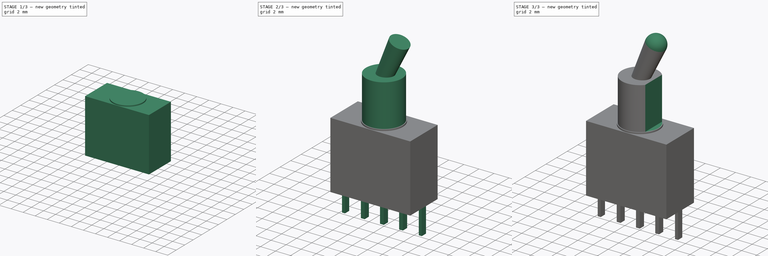
[diagram: build sequence overview — one tinted view per stage of 3, left to right]
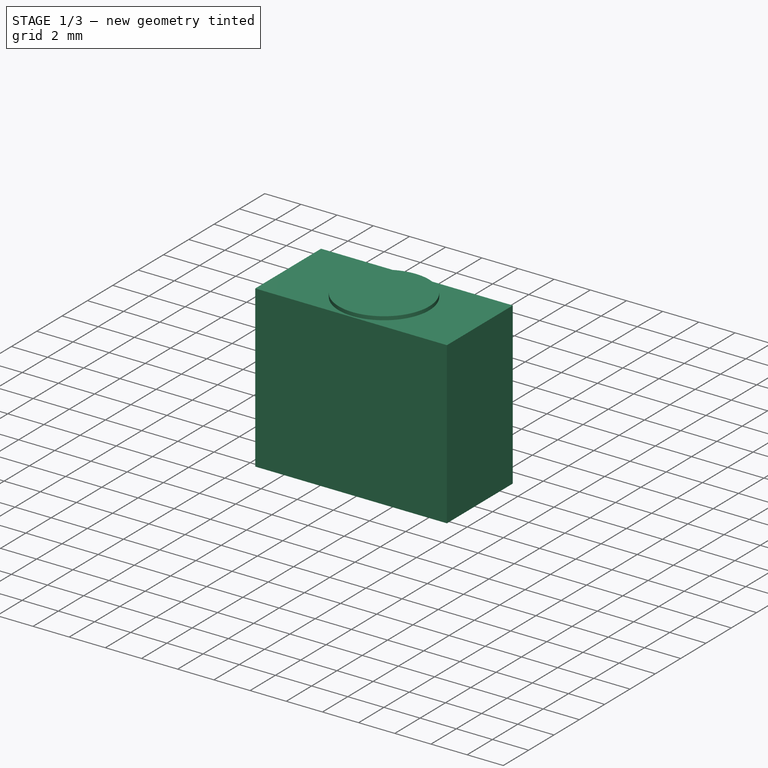
[diagram: stage 1 of 3 — iso view after this stage's code; geometry added in this stage tinted green]
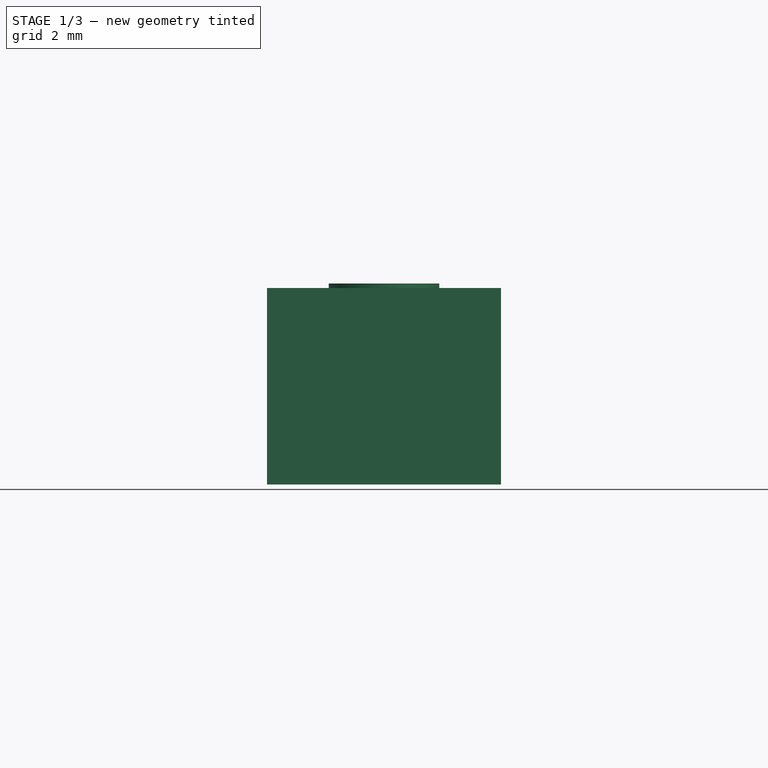
[diagram: stage 1 of 3 — front view after this stage's code; geometry added in this stage tinted green]
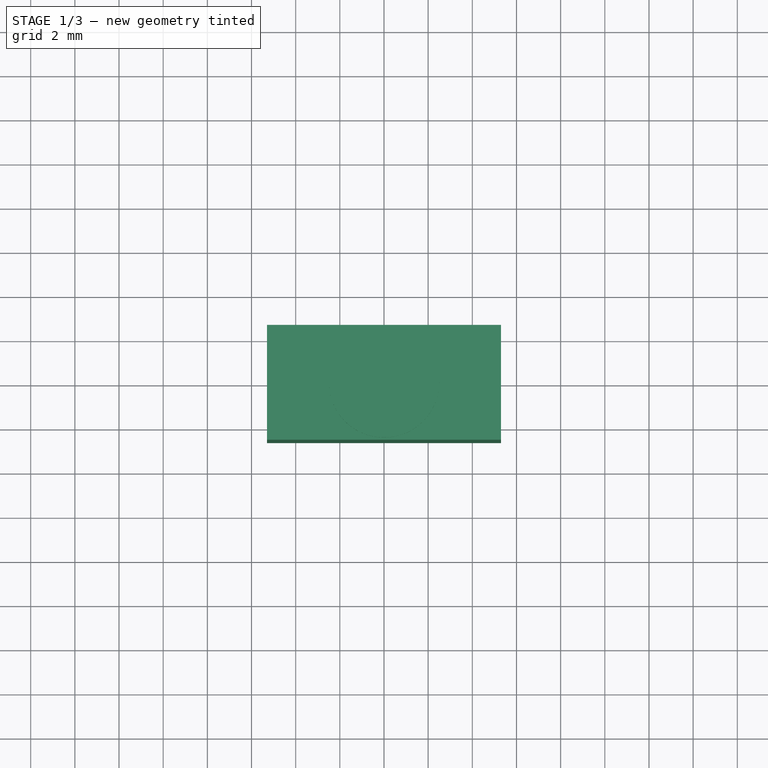
[diagram: stage 1 of 3 — top view after this stage's code; geometry added in this stage tinted green]
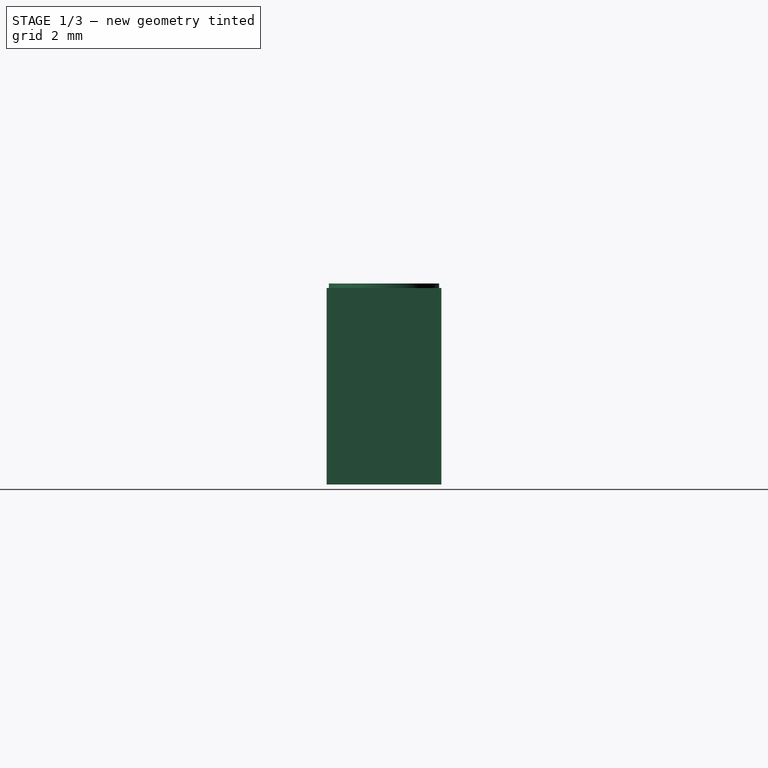
[diagram: stage 1 of 3 — right view after this stage's code; geometry added in this stage tinted green]
FCSTD DOCUMENT  (FreeCAD 0.19R24276 (Git))
Label: switch-smts-102-2c2t
License: All rights reserved
LicenseURL: http://en.wikipedia.org/wiki/All_rights_reserved
objects: Sketcher::SketchObject×5, PartDesign::Pad×4, PartDesign::AdditiveCone×1, PartDesign::AdditiveSphere×1, PartDesign::Pocket×1, PartDesign::Body×1
note: 20 computed .brp shape members not serialized (recipe doc carries the construction recipe); baked Part::Feature solids carry a one-line shape summary decoded from their .brp

FEATURE [Sketcher::SketchObject] Sketch  label="base"
  FullyConstrained = true
  MapMode = 5
  Support = -> [XY_Plane]
  sketch-geometry (4):
    g0: LineSegment StartX=-5.3 StartY=2.6 StartZ=0 EndX=5.3 EndY=2.6 EndZ=0
    g1: LineSegment StartX=5.3 StartY=2.6 StartZ=0 EndX=5.3 EndY=-2.6 EndZ=0
    g2: LineSegment StartX=5.3 StartY=-2.6 StartZ=0 EndX=-5.3 EndY=-2.6 EndZ=0
    g3: LineSegment StartX=-5.3 StartY=-2.6 StartZ=0 EndX=-5.3 EndY=2.6 EndZ=0
  constraints (12):
    c: Coincident(g0,g1)
    c: Coincident(g1,g2)
    c: Coincident(g2,g3)
    c: Coincident(g3,g0)
    c: Horizontal(g0)
    c: Horizontal(g2)
    c: Vertical(g1)
    c: Vertical(g3)
    c: DistanceY(g2,g-1) = 2.6
    c: DistanceY(g-1,g0) = 2.6
    c: DistanceX(g-1,g0) = 5.3
    c: DistanceX(g0,g-1) = 5.3
FEATURE [PartDesign::Pad] Pad  label="base_pad"
  Direction = (1,1,1)
  Length = 8.9
  Length2 = 100
  Profile = -> Sketch
  Type = 0
FEATURE [Sketcher::SketchObject] Sketch001  label="circle_d5mm"
  FullyConstrained = true
  MapMode = 5
  Placement = pos=(0,0,8.9) rot=(0,0,1;0rad)
  Support = -> [Pad]
  sketch-geometry (1):
    g0: Circle CenterX=0 CenterY=0 CenterZ=0 NormalX=0 NormalY=0 NormalZ=1 AngleXU=0 Radius=2.5
  constraints (2):
    c: Coincident(g0,g-1)
    c: Radius(g0) = 2.5
FEATURE [PartDesign::Pad] Pad001  label="circle_d5mm_pad"
  BaseFeature = -> Pad
  Direction = (1,1,1)
  Length = 0.2
  Length2 = 100
  Profile = -> Sketch001
  Type = 0
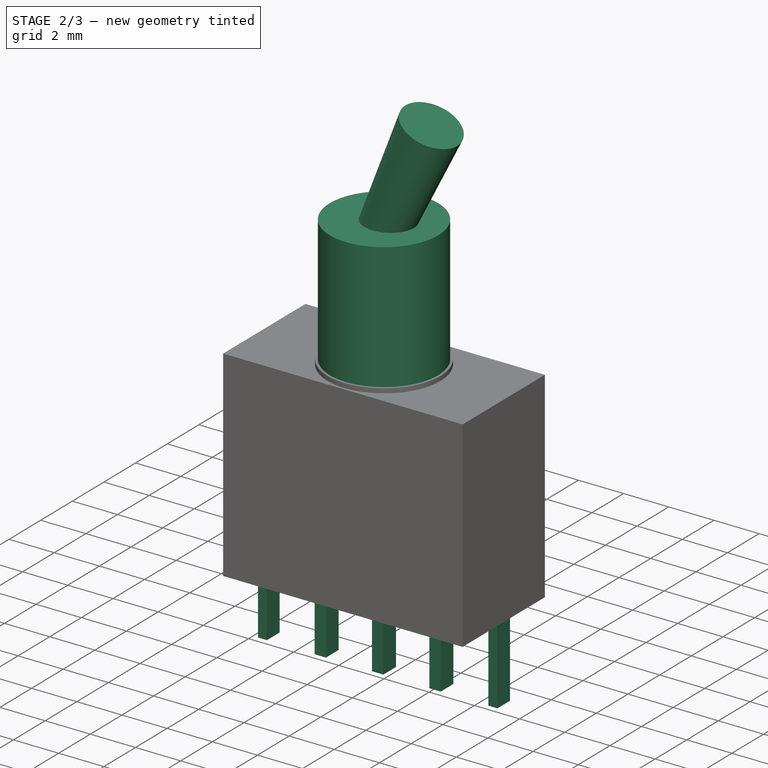
[diagram: stage 2 of 3 — iso view after this stage's code; geometry added in this stage tinted green]
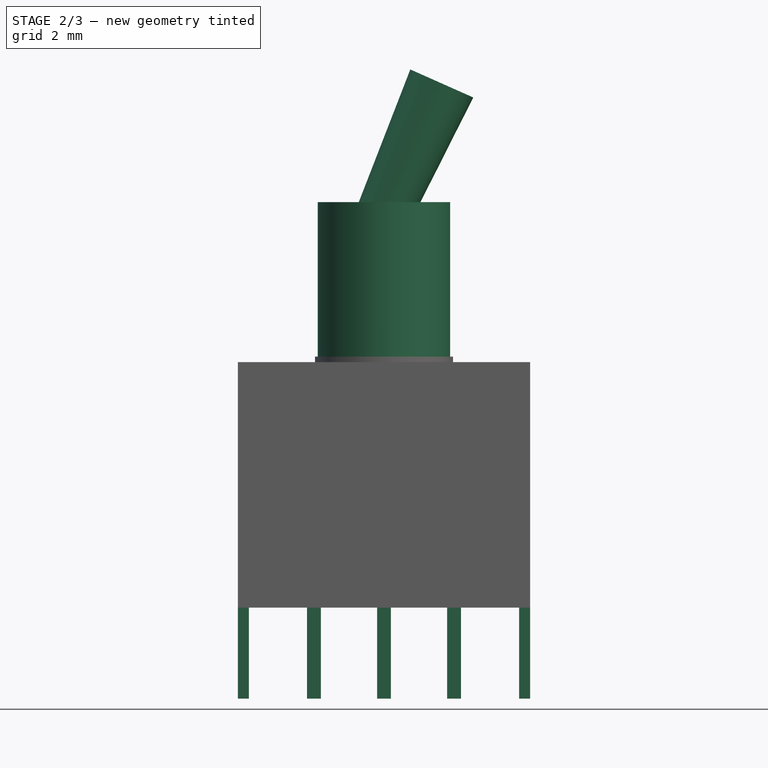
[diagram: stage 2 of 3 — front view after this stage's code; geometry added in this stage tinted green]
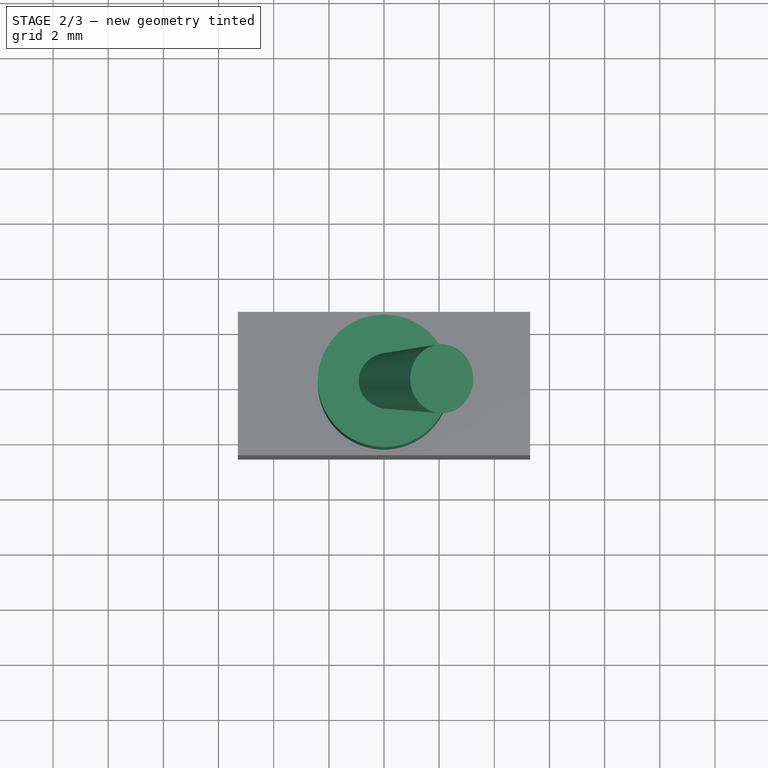
[diagram: stage 2 of 3 — top view after this stage's code; geometry added in this stage tinted green]
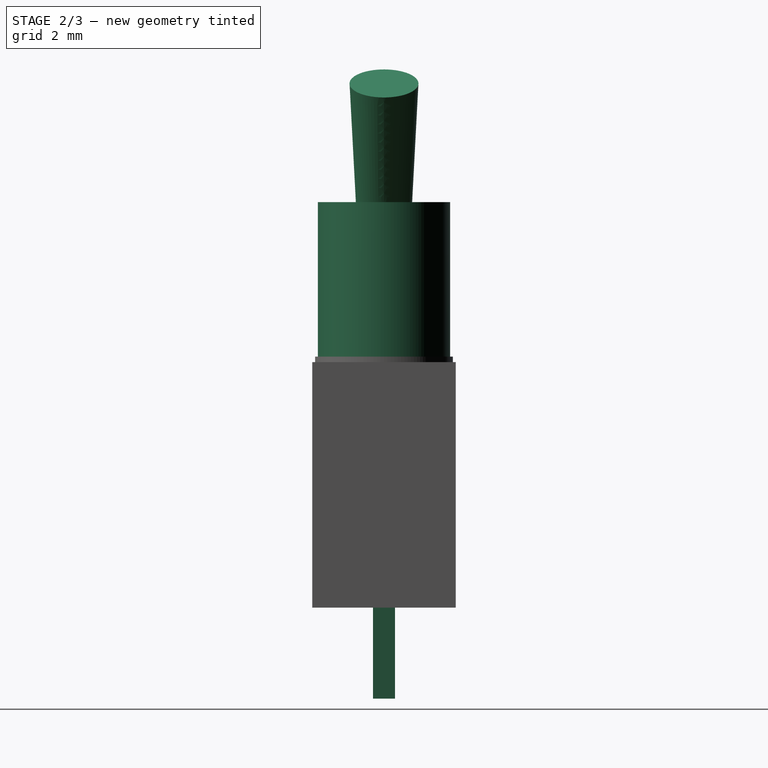
[diagram: stage 2 of 3 — right view after this stage's code; geometry added in this stage tinted green]
FEATURE [Sketcher::SketchObject] Sketch002  label="circle_d4.8mm"
  FullyConstrained = true
  MapMode = 5
  Placement = pos=(0,0,9.1) rot=(0,0,1;0rad)
  Support = -> [Pad001]
  sketch-geometry (1):
    g0: Circle CenterX=0 CenterY=0 CenterZ=0 NormalX=0 NormalY=0 NormalZ=1 AngleXU=0 Radius=2.4
  constraints (2):
    c: Coincident(g0,g-1)
    c: Radius(g0) = 2.4
FEATURE [PartDesign::Pad] Pad002  label="circle_d4.8mm_pad"
  BaseFeature = -> Pad001
  Direction = (1,1,1)
  Length = 5.6
  Length2 = 100
  Profile = -> Sketch002
  Type = 0
FEATURE [Sketcher::SketchObject] Sketch003  label="pins"
  FullyConstrained = true
  MapMode = 5
  Placement = pos=(0,0,0) rot=(1,0,0;3.14159rad)
  Support = -> [Pad002]
  sketch-geometry (20):
    g0: LineSegment StartX=-0.25 StartY=0.4 StartZ=0 EndX=0.25 EndY=0.4 EndZ=0
    g1: LineSegment StartX=0.25 StartY=0.4 StartZ=0 EndX=0.25 EndY=-0.4 EndZ=0
    g2: LineSegment StartX=0.25 StartY=-0.4 StartZ=0 EndX=-0.25 EndY=-0.4 EndZ=0
    g3: LineSegment StartX=-0.25 StartY=-0.4 StartZ=0 EndX=-0.25 EndY=0.4 EndZ=0
    g4: LineSegment StartX=-2.79 StartY=0.4 StartZ=0 EndX=-2.29 EndY=0.4 EndZ=0
    g5: LineSegment StartX=-2.29 StartY=0.4 StartZ=0 EndX=-2.29 EndY=-0.4 EndZ=0
    g6: LineSegment StartX=-2.29 StartY=-0.4 StartZ=0 EndX=-2.79 EndY=-0.4 EndZ=0
    g7: LineSegment StartX=-2.79 StartY=-0.4 StartZ=0 EndX=-2.79 EndY=0.4 EndZ=0
    g8: LineSegment StartX=2.29 StartY=0.4 StartZ=0 EndX=2.79 EndY=0.4 EndZ=0
    g9: LineSegment StartX=2.79 StartY=0.4 StartZ=0 EndX=2.79 EndY=-0.4 EndZ=0
    g10: LineSegment StartX=2.79 StartY=-0.4 StartZ=0 EndX=2.29 EndY=-0.4 EndZ=0
    g11: LineSegment StartX=2.29 StartY=-0.4 StartZ=0 EndX=2.29 EndY=0.4 EndZ=0
    g12: LineSegment StartX=-5.3 StartY=0.4 StartZ=0 EndX=-4.9 EndY=0.4 EndZ=0
    g13: LineSegment StartX=-4.9 StartY=0.4 StartZ=0 EndX=-4.9 EndY=-0.4 EndZ=0
    g14: LineSegment StartX=-4.9 StartY=-0.4 StartZ=0 EndX=-5.3 EndY=-0.4 EndZ=0
    g15: LineSegment StartX=-5.3 StartY=-0.4 StartZ=0 EndX=-5.3 EndY=0.4 EndZ=0
    g16: LineSegment StartX=4.9 StartY=0.4 StartZ=0 EndX=5.3 EndY=0.4 EndZ=0
    g17: LineSegment StartX=5.3 StartY=0.4 StartZ=0 EndX=5.3 EndY=-0.4 EndZ=0
    g18: LineSegment StartX=5.3 StartY=-0.4 StartZ=0 EndX=4.9 EndY=-0.4 EndZ=0
    g19: LineSegment StartX=4.9 StartY=-0.4 StartZ=0 EndX=4.9 EndY=0.4 EndZ=0
  constraints (60):
    c: Coincident(g0,g1)
    c: Coincident(g1,g2)
    c: Coincident(g2,g3)
    c: Coincident(g3,g0)
    c: Horizontal(g0)
    c: Horizontal(g2)
    c: Vertical(g1)
    c: Vertical(g3)
    c: DistanceX(g2,g-1) = 0.25
    c: DistanceX(g-1,g1) = 0.25
    c: DistanceY(g-1,g0) = 0.4
    c: DistanceY(g2,g-1) = 0.4
    c: Coincident(g4,g5)
    c: Coincident(g5,g6)
    c: Coincident(g6,g7)
    c: Coincident(g7,g4)
    c: Horizontal(g4)
    c: Horizontal(g6)
    c: Vertical(g5)
    c: Vertical(g7)
    c: DistanceX(g4,g4) = 0.5
    c: DistanceY(g7,g7) = 0.8
    c: DistanceY(g-1,g4) = 0.4
    c: DistanceX(g5,g2) = 2.04
    c: Coincident(g8,g9)
    c: Coincident(g9,g10)
    c: Coincident(g10,g11)
    c: Coincident(g11,g8)
    c: Horizontal(g8)
    c: Horizontal(g10)
    c: Vertical(g9)
    c: Vertical(g11)
    c: Equal(g4,g8) = 0.5
    c: Equal(g7,g11) = 0.8
    c: PointOnObject(g11,g6)
    c: DistanceX(g1,g10) = 2.04
    c: Coincident(g12,g13)
    c: Coincident(g13,g14)
    c: Coincident(g14,g15)
    c: Coincident(g15,g12)
    c: Horizontal(g12)
    c: Horizontal(g14)
    c: Vertical(g13)
    c: Vertical(g15)
    c: DistanceX(g12,g12) = 0.4
    c: DistanceY(g15,g15) = 0.8
    c: DistanceX(g13,g-1) = 4.9
    c: DistanceY(g-1,g12) = 0.4
    c: Coincident(g16,g17)
    c: Coincident(g17,g18)
    c: Coincident(g18,g19)
    c: Coincident(g19,g16)
    c: Horizontal(g16)
    c: Horizontal(g18)
    c: Vertical(g17)
    c: Vertical(g19)
    c: Equal(g12,g16) = 0.4
    c: Equal(g15,g19) = 0.8
    c: DistanceX(g-1,g16) = 4.9
    c: DistanceY(g-1,g16) = 0.4
FEATURE [PartDesign::Pad] Pad003  label="pins_pad"
  BaseFeature = -> Pad002
  Direction = (1,1,1)
  Length = 3.3
  Length2 = 100
  Profile = -> Sketch003
  Type = 0
FEATURE [PartDesign::AdditiveCone] Cone  label="lever"
  Angle = 360
  AttacherType = Attacher::AttachEngine3D
  AttachmentOffset = pos=(0,0,-0.4) rot=(0,1,0;0.418879rad)
  BaseFeature = -> Pad003
  Height = 5.15
  MapMode = 5
  Placement = pos=(0,0,14.3) rot=(0,1,0;0.418879rad)
  Radius1 = 1
  Radius2 = 1.25
  Support = -> [Pad003]
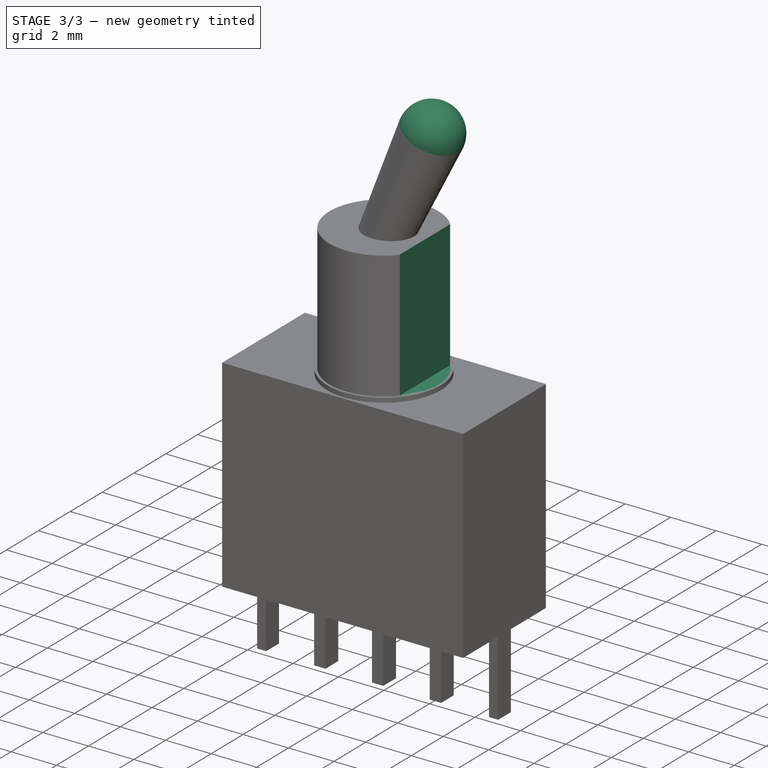
[diagram: stage 3 of 3 — iso view after this stage's code; geometry added in this stage tinted green]
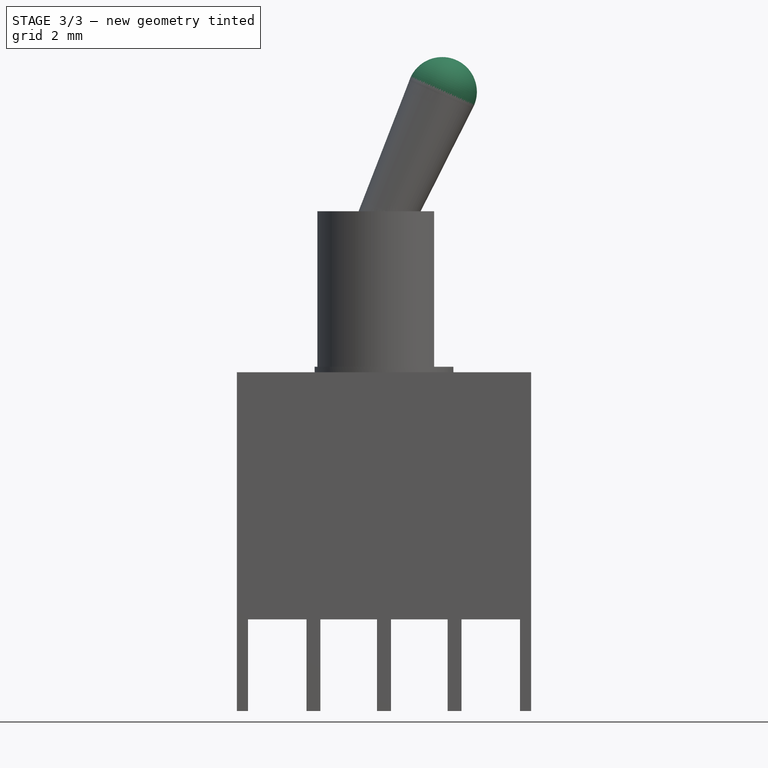
[diagram: stage 3 of 3 — front view after this stage's code; geometry added in this stage tinted green]
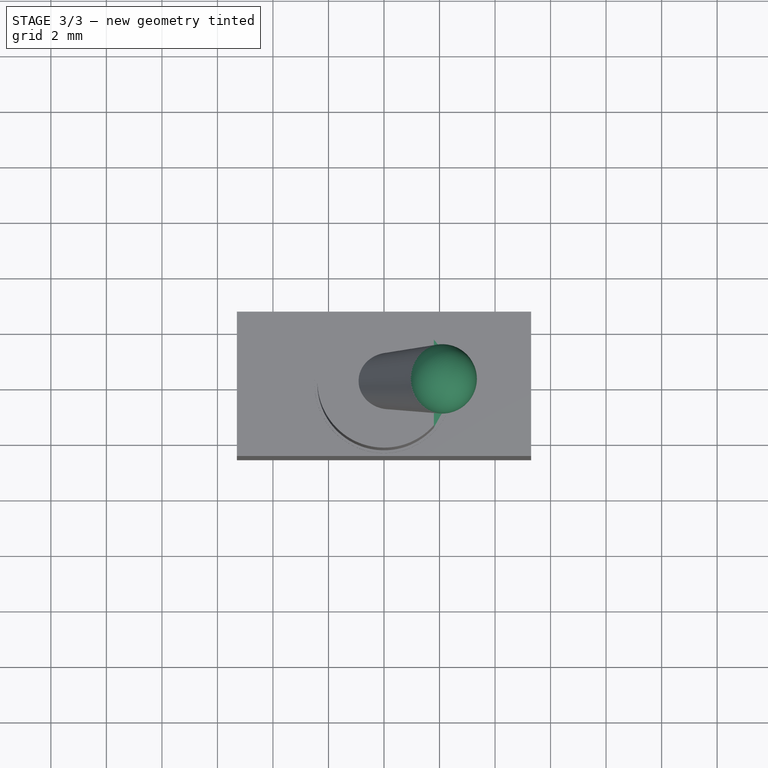
[diagram: stage 3 of 3 — top view after this stage's code; geometry added in this stage tinted green]
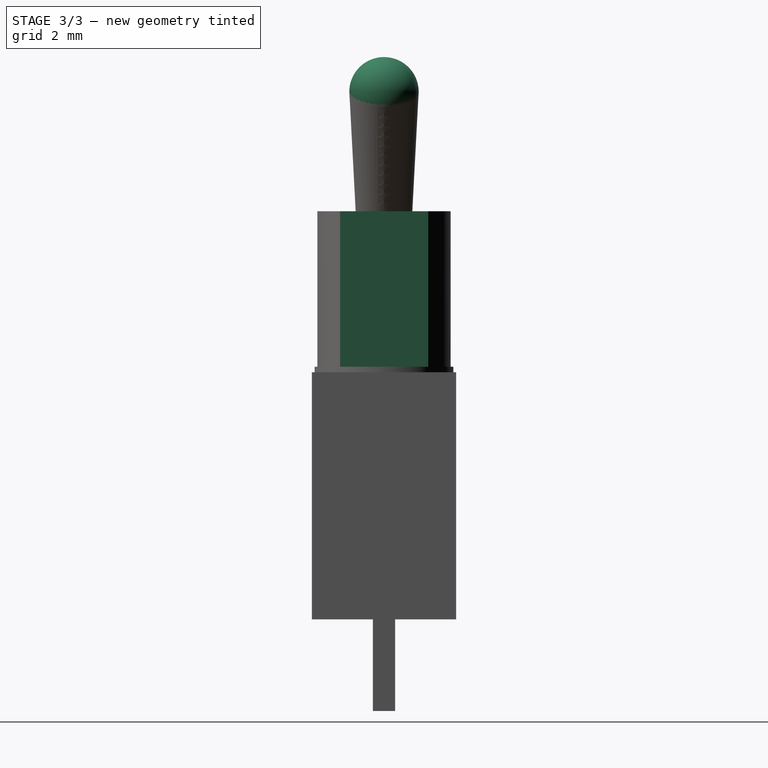
[diagram: stage 3 of 3 — right view after this stage's code; geometry added in this stage tinted green]
FEATURE [PartDesign::AdditiveSphere] Sphere  label="hemisphere"
  Angle1 = -90
  Angle2 = 90
  Angle3 = 360
  AttacherType = Attacher::AttachEngine3D
  BaseFeature = -> Cone
  MapMode = 5
  Placement = pos=(2.09469,0,19.0048) rot=(0,1,0;0.418879rad)
  Radius = 1.25
  Support = -> [Cone]
FEATURE [Sketcher::SketchObject] Sketch004  label="key"
  FullyConstrained = false
  MapMode = 5
  Placement = pos=(2.09469,0,14.7) rot=(0,0,1;0rad)
  Support = -> [Sphere]
  sketch-geometry (4):
    g0: LineSegment StartX=-0.3 StartY=1.5934 StartZ=0 EndX=-0.3 EndY=-1.58161 EndZ=0
    g1: LineSegment StartX=-0.3 StartY=1.5934 StartZ=0 EndX=5 EndY=1.5934 EndZ=0
    g2: LineSegment StartX=-0.3 StartY=-1.58161 StartZ=0 EndX=5 EndY=-1.58161 EndZ=0
    g3: LineSegment StartX=5 StartY=-1.58161 StartZ=0 EndX=5 EndY=1.5934 EndZ=0
  constraints (9):
    c: Vertical(g0)
    c: DistanceX(g0,g-1) = 0.3
    c: Coincident(g1,g0)
    c: Horizontal(g1)
    c: Coincident(g2,g0)
    c: Horizontal(g2)
    c: Coincident(g3,g2)
    c: Coincident(g3,g1)
    c: Vertical(g3)
FEATURE [PartDesign::Pocket] Pocket  label="key_pocket"
  BaseFeature = -> Sphere
  Length = 5.6
  Length2 = 100
  Placement = pos=(2.09469,0,19.0048) rot=(0,1,0;0.418879rad)
  Profile = -> Sketch004
  Type = 0
FEATURE [PartDesign::Body] Body
  Group = -> [Sketch,Pad,Sketch001,Pad001,Sketch002,Pad002,Sketch003,Pad003,Cone,Sphere,Sketch004,Pocket]
  Origin = -> Origin
  Tip = -> Pocket
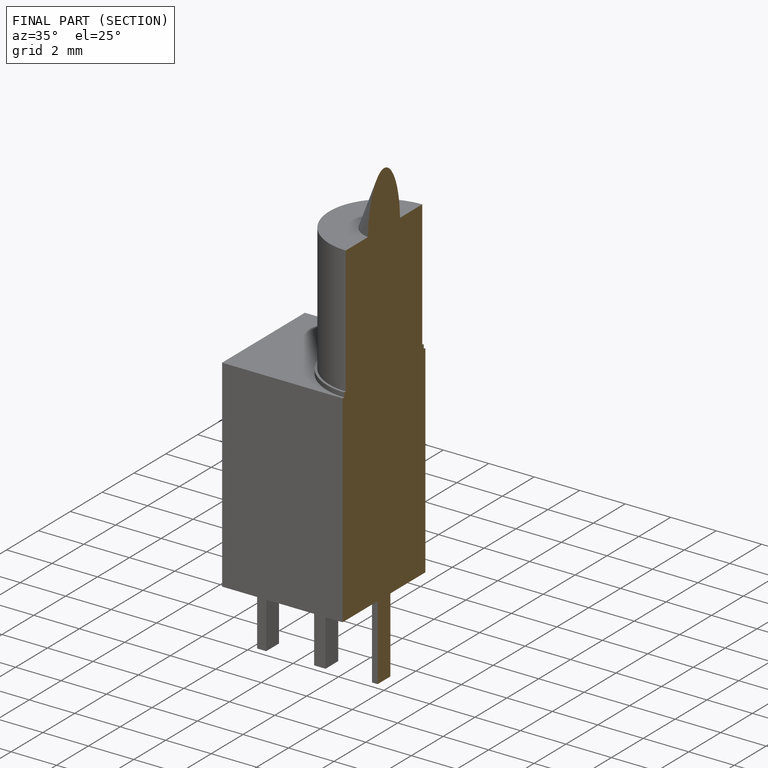
[diagram: finished part — half-section view (interior)]
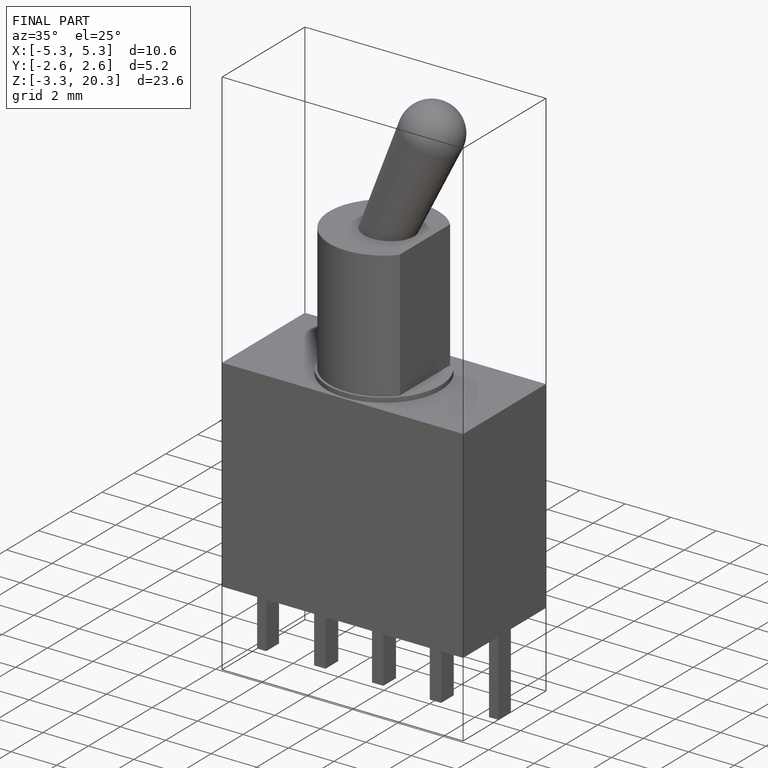
[diagram: finished part — iso view with bounding-box wireframe]
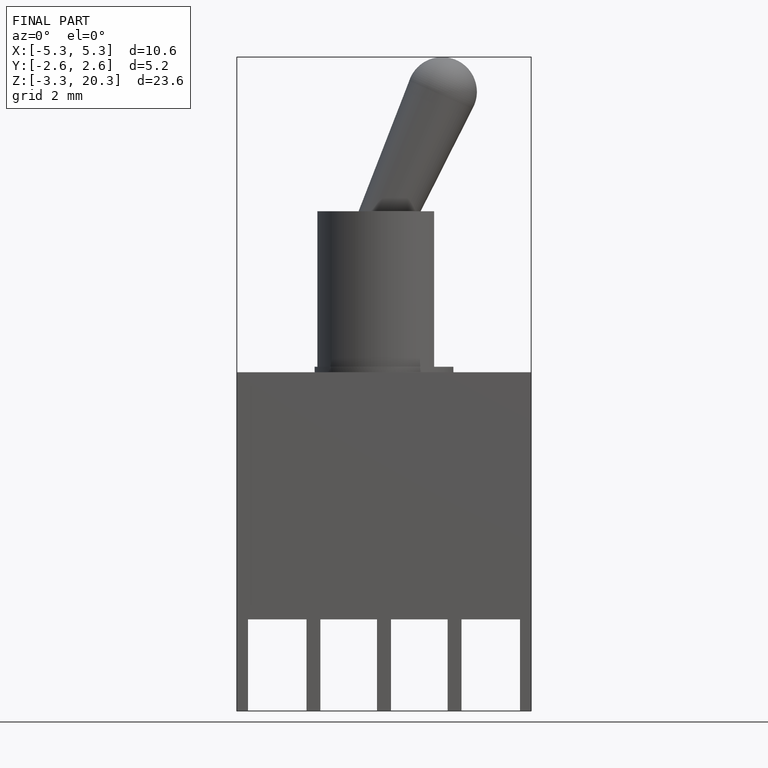
[diagram: finished part — front view with bounding-box wireframe]
